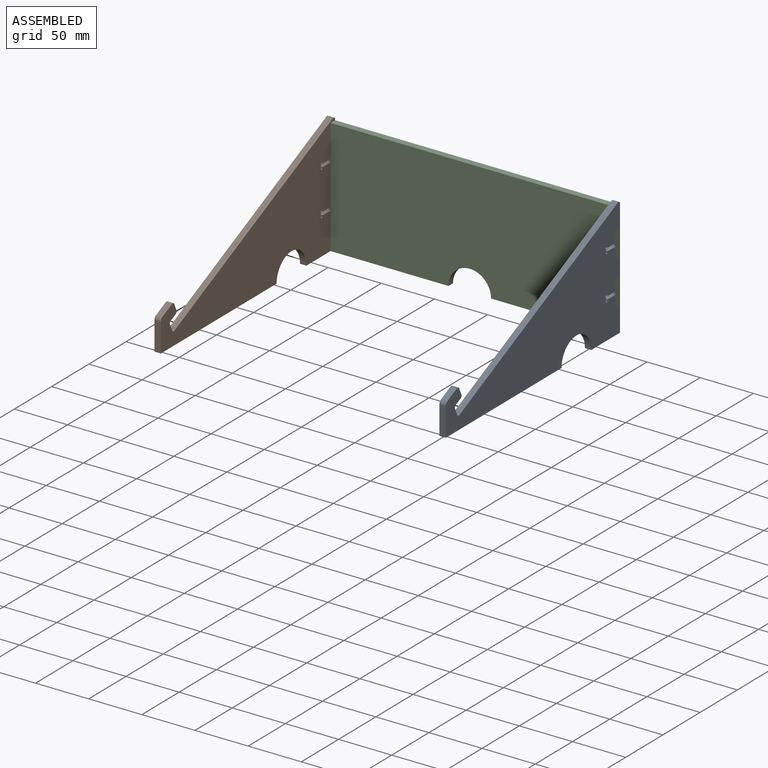
[diagram: assembled view]
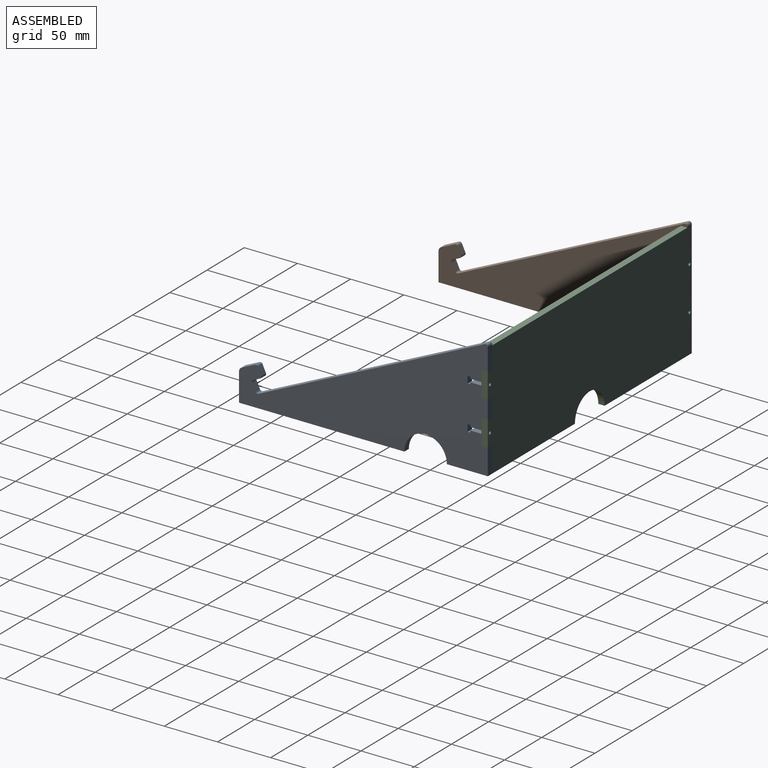
[diagram: assembled view, second angle]
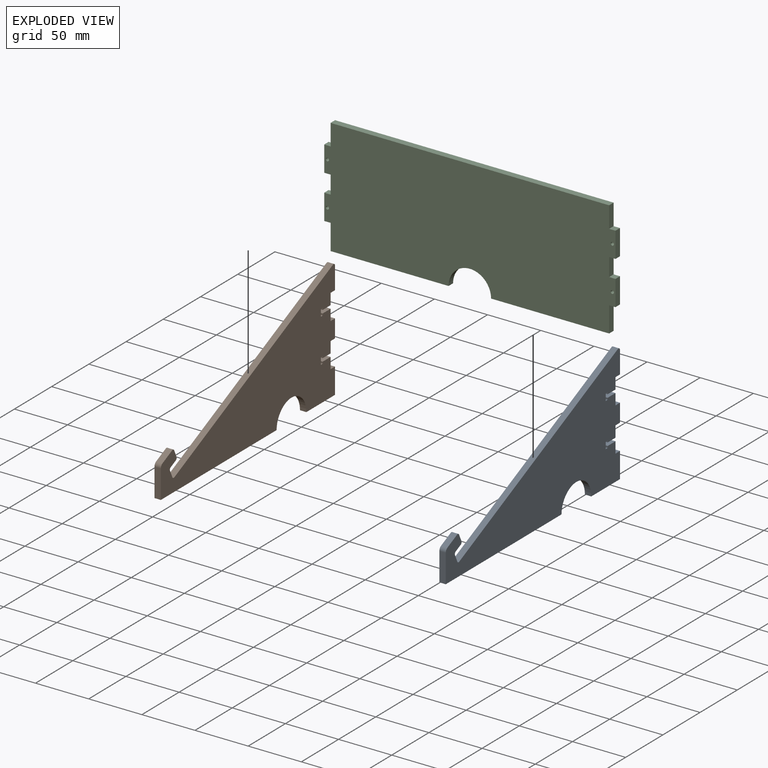
[diagram: exploded view]
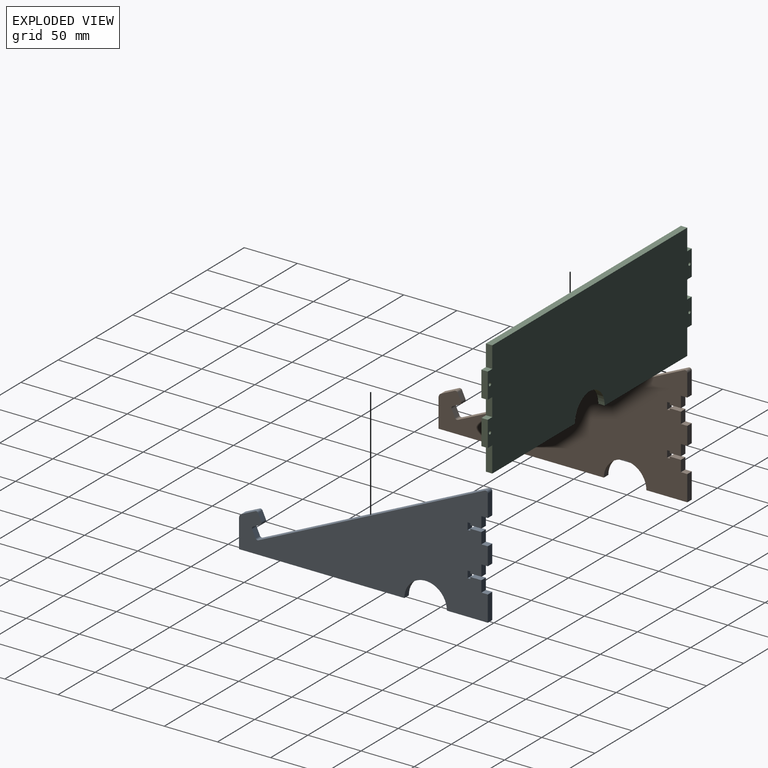
[diagram: exploded view, second angle]
ASSEMBLY  parts=3 mates=2
PART A: 42 faces, bbox 234x111.8x6 mm
  f0: plane 6x6mm, normal (0,-1,0), area 36mm2, adj f1,f39,f40,f41
  f1: plane 20.86x6mm, normal (1,0,0), area 125.2mm2, adj f0,f2,f40,f41
  f2: cylinder r=2mm len=6mm, axis (0,0,-1), area 24.1mm2, adj f1,f3,f40,f41
  f3: plane 212.98x99.32mm, normal (-0.42,0.91,0), area 1410mm2, adj f2,f4,f40,f41
  f4: cylinder r=2mm len=6mm, axis (0,0,-1), area 18.8mm2, adj f3,f5,f40,f41
  f5: plane 6.8x6mm, normal (0.91,0.42,0), area 45mm2, adj f4,f6,f40,f41
  f6: cylinder r=2mm len=6mm, axis (0,0,-1), area 18.8mm2, adj f5,f7,f40,f41
  f7: plane 6.8x6mm, normal (0.42,-0.91,0), area 45mm2, adj f6,f8,f40,f41
  f8: cylinder r=2mm len=6mm, axis (0,0,-1), area 18.8mm2, adj f7,f9,f40,f41
  f9: plane 6.8x6mm, normal (0.91,0.42,0), area 45mm2, adj f8,f10,f40,f41
  f10: cylinder r=2mm len=6mm, axis (0,0,-1), area 18.8mm2, adj f9,f11,f40,f41
  f11: plane 12.94x6.03mm, normal (-0.42,0.91,0), area 85.7mm2, adj f10,f12,f40,f41
  f12: cylinder r=4mm len=6mm, axis (0,0,-1), area 27.2mm2, adj f11,f13,f40,f41
  f13: plane 26.7x6mm, normal (-1,0,0), area 160.2mm2, adj f12,f14,f40,f41
  f14: plane 155.5x6mm, normal (0,-1,0), area 933mm2, adj f13,f15,f40,f41
  f15: cylinder r=20mm len=40mm, axis (0,0,-1), area 377mm2, adj f14,f16,f40,f41
  f16: plane 38.5x6mm, normal (0,-1,0), area 231mm2, adj f15,f17,f40,f41
  f17: plane 24x6mm, normal (1,0,0), area 144mm2, adj f16,f18,f40,f41
  f18: plane 6x6mm, normal (0,1,0), area 36mm2, adj f17,f19,f40,f41
  f19: plane 10.5x6mm, normal (1,0,0), area 63mm2, adj f18,f20,f40,f41
  f20: plane 10.5x6mm, normal (0,1,0), area 63mm2, adj f19,f21,f40,f41
  f21: plane 6x1.75mm, normal (-1,0,0), area 10.5mm2, adj f20,f22,f40,f41
  f22: plane 6x2.5mm, normal (0,1,0), area 15mm2, adj f21,f23,f40,f41
  f23: plane 6.5x6mm, normal (1,0,0), area 39mm2, adj f22,f24,f40,f41
  f24: plane 6x2.5mm, normal (0,-1,0), area 15mm2, adj f23,f25,f40,f41
  f25: plane 6x1.75mm, normal (-1,0,0), area 10.5mm2, adj f24,f26,f40,f41
  f26: plane 10.5x6mm, normal (0,-1,0), area 63mm2, adj f25,f27,f40,f41
  f27: plane 10.5x6mm, normal (1,0,0), area 63mm2, adj f26,f28,f40,f41
  f28: plane 6x6mm, normal (0,-1,0), area 36mm2, adj f27,f29,f40,f41
  f29: plane 16.99x6mm, normal (1,0,0), area 101.9mm2, adj f28,f30,f40,f41
  f30: plane 6x6mm, normal (0,1,0), area 36mm2, adj f29,f31,f40,f41
  f31: plane 10.5x6mm, normal (1,0,0), area 63mm2, adj f30,f32,f40,f41
  f32: plane 10.5x6mm, normal (0,1,0), area 63mm2, adj f31,f33,f40,f41
  f33: plane 6x1.75mm, normal (-1,0,0), area 10.5mm2, adj f32,f34,f40,f41
  f34: plane 6x2.5mm, normal (0,1,0), area 15mm2, adj f33,f35,f40,f41
  f35: plane 6.5x6mm, normal (1,0,0), area 39mm2, adj f34,f36,f40,f41
  f36: plane 6x2.5mm, normal (0,-1,0), area 15mm2, adj f35,f37,f40,f41
  f37: plane 6x1.75mm, normal (-1,0,0), area 10.5mm2, adj f36,f38,f40,f41
  f38: plane 10.5x6mm, normal (0,-1,0), area 63mm2, adj f37,f39,f40,f41
  f39: plane 10.5x6mm, normal (1,0,0), area 63mm2, adj f0,f38,f40,f41
  f40: plane 234x111.85mm, normal (0,0,1), area 13081.3mm2, adj f0,f1,f2,f3,f4,f5,f6,f7
  f41: plane 234x111.85mm, normal (0,0,-1), area 13081.3mm2, adj f0,f1,f2,f3,f4,f5,f6,f7
PART B: same geometry as A
PART C: 28 faces, bbox 274x109x6 mm
  f0: cylinder r=20mm len=40mm, axis (0,0,-1), area 377mm2, adj f1,f22,f26,f27
  f1: plane 111x6mm, normal (0,-1,0), area 666mm2, adj f0,f2,f26,f27
  f2: plane 24x6mm, normal (1,0,0), area 144mm2, adj f1,f3,f26,f27
  f3: plane 6x6mm, normal (0,-1,0), area 36mm2, adj f2,f4,f26,f27
  f4: plane 24x6mm, normal (1,0,0), area 144mm2, adj f3,f5,f26,f27
  f5: plane 6x6mm, normal (0,1,0), area 36mm2, adj f4,f6,f26,f27
  f6: plane 16.99x6mm, normal (1,0,0), area 101.9mm2, adj f5,f7,f26,f27
  f7: plane 6x6mm, normal (0,-1,0), area 36mm2, adj f6,f8,f26,f27
  f8: plane 24x6mm, normal (1,0,0), area 144mm2, adj f7,f9,f26,f27
  f9: plane 6x6mm, normal (0,1,0), area 36mm2, adj f8,f10,f26,f27
  f10: plane 20x6mm, normal (1,0,0), area 120mm2, adj f9,f11,f26,f27
  f11: plane 262x6mm, normal (0,1,0), area 1572mm2, adj f10,f12,f26,f27
  f12: plane 20x6mm, normal (-1,0,0), area 120mm2, adj f11,f13,f26,f27
  f13: plane 6x6mm, normal (0,1,0), area 36mm2, adj f12,f14,f26,f27
  f14: plane 24x6mm, normal (-1,0,0), area 144mm2, adj f13,f15,f26,f27
  f15: plane 6x6mm, normal (0,-1,0), area 36mm2, adj f14,f16,f26,f27
  f16: plane 16.99x6mm, normal (-1,0,0), area 101.9mm2, adj f15,f17,f26,f27
  f17: plane 6x6mm, normal (0,1,0), area 36mm2, adj f16,f18,f26,f27
  f18: plane 24x6mm, normal (-1,0,0), area 144mm2, adj f17,f19,f26,f27
  f19: plane 6x6mm, normal (0,-1,0), area 36mm2, adj f18,f20,f26,f27
  f20: plane 24x6mm, normal (-1,0,0), area 144mm2, adj f19,f22,f26,f27
  f21: cylinder r=1.5mm len=6mm, axis (0,0,-1), area 56.5mm2, adj f26,f27
  f22: plane 111x6mm, normal (0,-1,0), area 666mm2, adj f0,f20,f26,f27
  f23: cylinder r=1.5mm len=6mm, axis (0,0,-1), area 56.5mm2, adj f26,f27
  f24: cylinder r=1.5mm len=6mm, axis (0,0,-1), area 56.5mm2, adj f26,f27
  f25: cylinder r=1.5mm len=6mm, axis (0,0,-1), area 56.5mm2, adj f26,f27
  f26: plane 274x108.99mm, normal (0,0,1), area 28474mm2, adj f0,f1,f2,f3,f4,f5,f6,f7
  f27: plane 274x108.99mm, normal (0,0,-1), area 28474mm2, adj f0,f1,f2,f3,f4,f5,f6,f7
PLACE A rot(axis=(0.58,0.58,0.58),120deg) t=(206.5,-231,0)mm
PLACE B rot(axis=(0.58,0.58,0.58),120deg) t=(-61.5,-231,0)mm
PLACE C rot(axis=(1,0,0),90deg) t=(-299.5,3,0)mm
MATE fastened B.f18 <-> C.f19  axis (0,0,1) through (-58.5,0,24)mm
MATE fastened A.f28 <-> C.f5  axis (0,0,-1) through (209.5,0,48)mm
